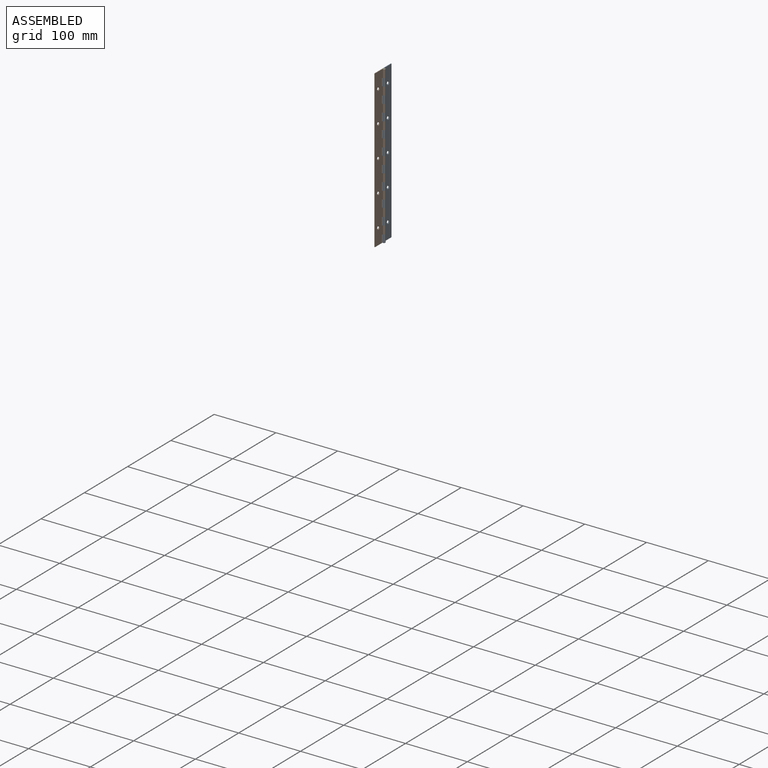
[diagram: assembled view]
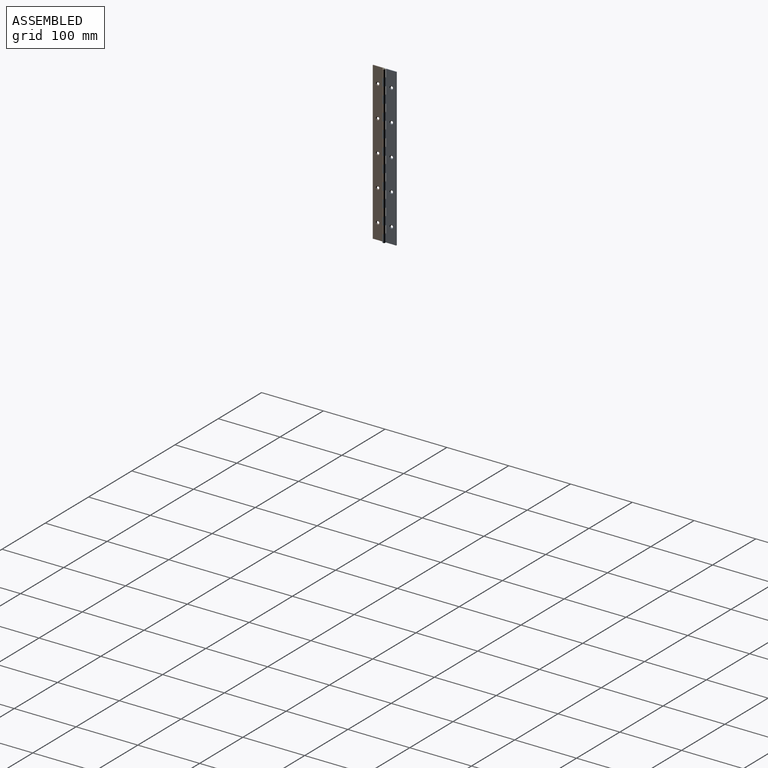
[diagram: assembled view, second angle]
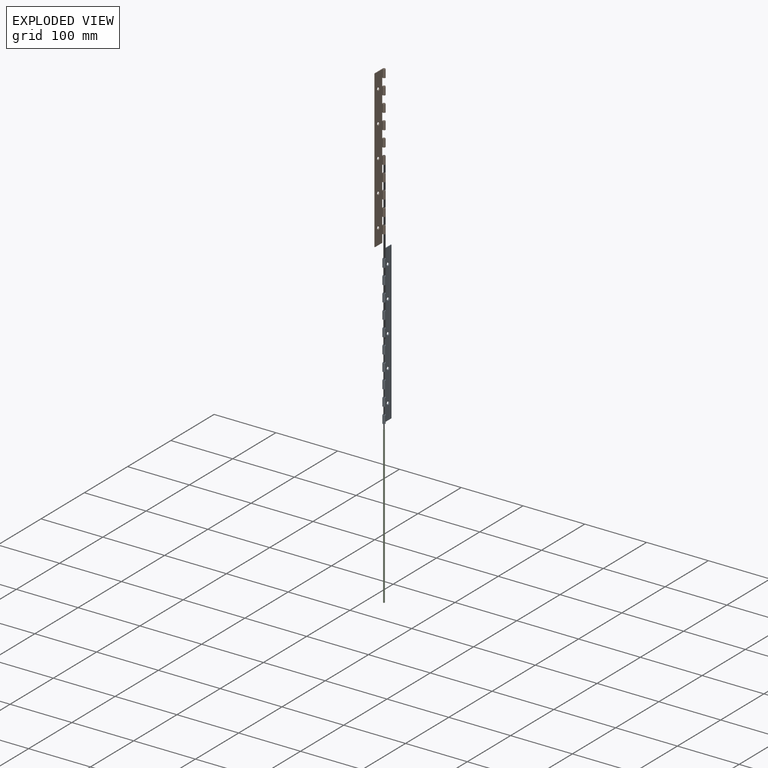
[diagram: exploded view]
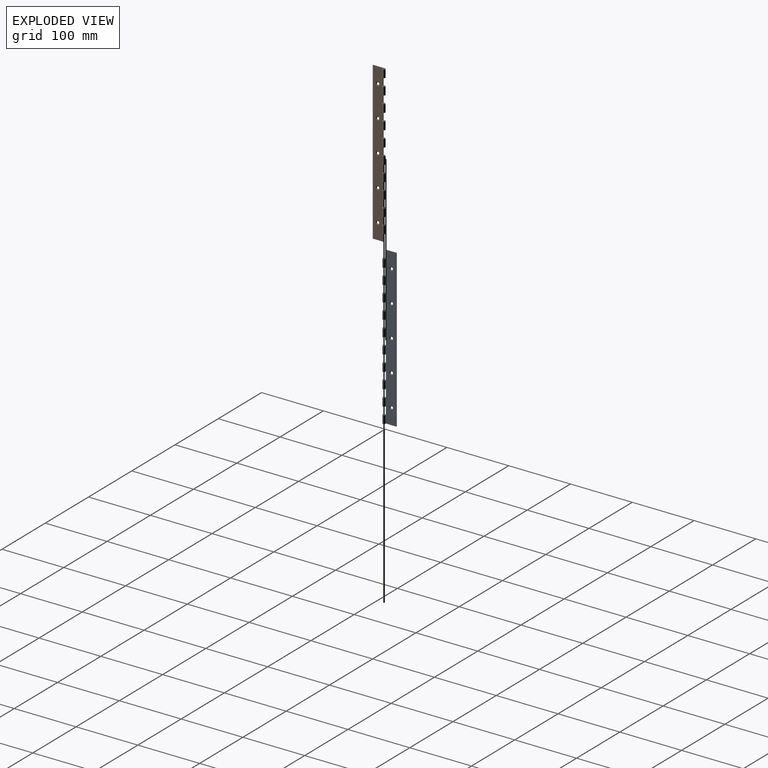
[diagram: exploded view, second angle]
ASSEMBLY  parts=3 mates=2
PART A: 69 faces, bbox 21.3x4.4x254 mm
  f0: plane 16.82x1.02mm, normal (0,0,-1), area 17.1mm2, adj f55,f56,f60,f67
  f1: plane 12.7x0.92mm, normal (-0.43,-0.9,0), area 12.9mm2, adj f2,f3,f4,f11
  f2: cylinder r=1.19mm len=12.7mm, axis (0,0,1), area 77.9mm2, adj f1,f4,f11,f56
  f3: cylinder r=2.21mm len=12.7mm, axis (0,0,1), area 144.6mm2, adj f1,f4,f11,f55
  f4: plane 4.44x4.42mm, normal (0,0,-1), area 11.2mm2, adj f1,f2,f3,f6,f55,f56
  f5: plane 4.44x4.42mm, normal (0,0,1), area 11.2mm2, adj f6,f55,f56,f58,f59,f61
  f6: plane 12.7x1.02mm, normal (-1,0,0), area 12.9mm2, adj f4,f5,f55,f56
  f7: plane 12.7x0.92mm, normal (-0.43,-0.9,0), area 12.9mm2, adj f8,f9,f10,f17
  f8: cylinder r=1.19mm len=12.7mm, axis (0,0,1), area 77.9mm2, adj f7,f10,f17,f56
  f9: cylinder r=2.21mm len=12.7mm, axis (0,0,1), area 144.6mm2, adj f7,f10,f17,f55
  f10: plane 4.44x4.42mm, normal (0,0,-1), area 11.2mm2, adj f7,f8,f9,f12,f55,f56
  f11: plane 4.44x4.42mm, normal (0,0,1), area 11.2mm2, adj f1,f2,f3,f12,f55,f56
  f12: plane 12.7x1.02mm, normal (-1,0,0), area 12.9mm2, adj f10,f11,f55,f56
  f13: plane 12.7x0.92mm, normal (-0.43,-0.9,0), area 12.9mm2, adj f14,f15,f16,f23
  f14: cylinder r=1.19mm len=12.7mm, axis (0,0,1), area 77.9mm2, adj f13,f16,f23,f56
  f15: cylinder r=2.21mm len=12.7mm, axis (0,0,1), area 144.6mm2, adj f13,f16,f23,f55
  f16: plane 4.44x4.42mm, normal (0,0,-1), area 11.2mm2, adj f13,f14,f15,f18,f55,f56
  f17: plane 4.44x4.42mm, normal (0,0,1), area 11.2mm2, adj f7,f8,f9,f18,f55,f56
  f18: plane 12.7x1.02mm, normal (-1,0,0), area 12.9mm2, adj f16,f17,f55,f56
  f19: plane 12.7x0.92mm, normal (-0.43,-0.9,0), area 12.9mm2, adj f20,f21,f22,f29
  f20: cylinder r=1.19mm len=12.7mm, axis (0,0,1), area 77.9mm2, adj f19,f22,f29,f56
  f21: cylinder r=2.21mm len=12.7mm, axis (0,0,1), area 144.6mm2, adj f19,f22,f29,f55
  f22: plane 4.44x4.42mm, normal (0,0,-1), area 11.2mm2, adj f19,f20,f21,f24,f55,f56
  f23: plane 4.44x4.42mm, normal (0,0,1), area 11.2mm2, adj f13,f14,f15,f24,f55,f56
  f24: plane 12.7x1.02mm, normal (-1,0,0), area 12.9mm2, adj f22,f23,f55,f56
  f25: plane 12.7x0.92mm, normal (-0.43,-0.9,0), area 12.9mm2, adj f26,f27,f28,f35
  f26: cylinder r=1.19mm len=12.7mm, axis (0,0,1), area 77.9mm2, adj f25,f28,f35,f56
  f27: cylinder r=2.21mm len=12.7mm, axis (0,0,1), area 144.6mm2, adj f25,f28,f35,f55
  f28: plane 4.44x4.42mm, normal (0,0,-1), area 11.2mm2, adj f25,f26,f27,f30,f55,f56
  f29: plane 4.44x4.42mm, normal (0,0,1), area 11.2mm2, adj f19,f20,f21,f30,f55,f56
  f30: plane 12.7x1.02mm, normal (-1,0,0), area 12.9mm2, adj f28,f29,f55,f56
  f31: plane 12.7x0.92mm, normal (-0.43,-0.9,0), area 12.9mm2, adj f32,f33,f34,f41
  f32: cylinder r=1.19mm len=12.7mm, axis (0,0,1), area 77.9mm2, adj f31,f34,f41,f56
  f33: cylinder r=2.21mm len=12.7mm, axis (0,0,1), area 144.6mm2, adj f31,f34,f41,f55
  f34: plane 4.44x4.42mm, normal (0,0,-1), area 11.2mm2, adj f31,f32,f33,f36,f55,f56
  f35: plane 4.44x4.42mm, normal (0,0,1), area 11.2mm2, adj f25,f26,f27,f36,f55,f56
  f36: plane 12.7x1.02mm, normal (-1,0,0), area 12.9mm2, adj f34,f35,f55,f56
  f37: plane 12.7x0.92mm, normal (-0.43,-0.9,0), area 12.9mm2, adj f38,f39,f40,f47
  f38: cylinder r=1.19mm len=12.7mm, axis (0,0,1), area 77.9mm2, adj f37,f40,f47,f56
  f39: cylinder r=2.21mm len=12.7mm, axis (0,0,1), area 144.6mm2, adj f37,f40,f47,f55
  f40: plane 4.44x4.42mm, normal (0,0,-1), area 11.2mm2, adj f37,f38,f39,f42,f55,f56
  f41: plane 4.44x4.42mm, normal (0,0,1), area 11.2mm2, adj f31,f32,f33,f42,f55,f56
  f42: plane 12.7x1.02mm, normal (-1,0,0), area 12.9mm2, adj f40,f41,f55,f56
  f43: plane 12.7x0.92mm, normal (-0.43,-0.9,0), area 12.9mm2, adj f44,f45,f46,f65
  f44: cylinder r=1.19mm len=12.7mm, axis (0,0,1), area 77.9mm2, adj f43,f46,f56,f65
  f45: cylinder r=2.21mm len=12.7mm, axis (0,0,1), area 144.6mm2, adj f43,f46,f55,f65
  f46: plane 4.44x4.42mm, normal (0,0,-1), area 11.2mm2, adj f43,f44,f45,f48,f55,f56
  f47: plane 4.44x4.42mm, normal (0,0,1), area 11.2mm2, adj f37,f38,f39,f48,f55,f56
  f48: plane 12.7x1.02mm, normal (-1,0,0), area 12.9mm2, adj f46,f47,f55,f56
  f49: bspline ~5.69x5.68mm, area 21.1mm2, adj f55,f56
  f50: bspline ~5.69x5.68mm, area 21.1mm2, adj f55,f56
  f51: bspline ~5.69x5.68mm, area 21.1mm2, adj f55,f56
  f52: bspline ~5.69x5.68mm, area 21.1mm2, adj f55,f56
  f53: plane 12.7x0.92mm, normal (-0.43,-0.9,0), area 12.9mm2, adj f54,f57,f62,f64
  f54: cylinder r=2.21mm len=12.7mm, axis (0,0,1), area 144.6mm2, adj f53,f55,f62,f64
  f55: plane 254.01x19.06mm, normal (0,-1,0), area 4502.6mm2, adj f0,f3,f4,f5,f6,f9,f10,f11
  f56: plane 254.01x19.06mm, normal (0,1,0), area 4428.3mm2, adj f0,f2,f4,f5,f6,f8,f10,f11
  f57: cylinder r=1.19mm len=12.7mm, axis (0,0,1), area 77.9mm2, adj f53,f56,f62,f64
  f58: plane 12.7x0.92mm, normal (-0.43,-0.9,0), area 12.9mm2, adj f5,f59,f61,f68
  f59: cylinder r=2.21mm len=12.7mm, axis (0,0,1), area 144.6mm2, adj f5,f55,f58,f68
  f60: plane 254x1.02mm, normal (1,0,0), area 258.1mm2, adj f0,f55,f56,f62
  f61: cylinder r=1.19mm len=12.7mm, axis (0,0,1), area 77.9mm2, adj f5,f56,f58,f68
  f62: plane 21.26x4.42mm, normal (0,0,1), area 28.3mm2, adj f53,f54,f55,f56,f57,f60
  f63: plane 12.7x1.02mm, normal (-1,0,0), area 12.9mm2, adj f55,f56,f64,f65
  f64: plane 4.44x4.42mm, normal (0,0,-1), area 11.2mm2, adj f53,f54,f55,f56,f57,f63
  f65: plane 4.44x4.42mm, normal (0,0,1), area 11.2mm2, adj f43,f44,f45,f55,f56,f63
  f66: bspline ~5.69x5.68mm, area 21.1mm2, adj f55,f56
  f67: plane 12.7x1.02mm, normal (-1,0,0), area 12.9mm2, adj f0,f55,f56,f68
  f68: plane 4.44x4.42mm, normal (0,0,-1), area 11.2mm2, adj f55,f56,f58,f59,f61,f67
PART B: same geometry as A
PART C: 5 faces, bbox 254x2.4x2.4 mm
  f0: cylinder r=1.19mm len=253.49mm, axis (-1,0,0), area 1896.4mm2, adj f3,f4
  f1: plane 1.87x1.87mm, normal (1,0,0), area 2.8mm2, adj f4
  f2: plane 1.87x1.87mm, normal (-1,0,0), area 2.8mm2, adj f3
  f3: cone r=1.19mm half-angle=45deg, axis (1,0,0), area 2.4mm2, adj f0,f2
  f4: cone r=0.94mm half-angle=45deg, axis (-1,0,0), area 2.4mm2, adj f0,f1
PLACE A rot(axis=(0.71,0.71,0),180deg) t=(2.21,-10.04,0.4)mm
PLACE B rot(axis=(0,0,-1),90deg) t=(2.21,-10.04,0.4)mm
PLACE C rot(axis=(0,-1,0),90deg) t=(2.21,-10.04,0.65)mm
MATE revolute B.f3 <-> A.f3  axis (0,0,-1) through (2.21,-10.04,-113.9)mm
MATE fastened C.f0 <-> B.f3  axis (0,0,-1) through (2.21,-10.04,127.4)mm
